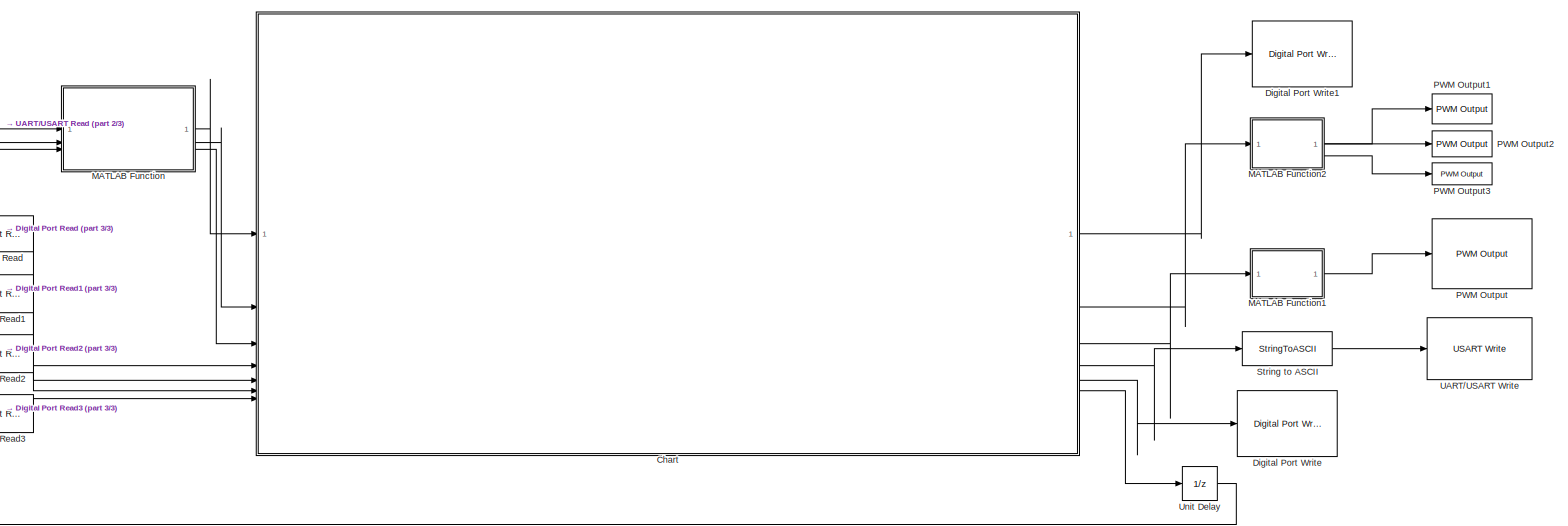
[diagram: root canvas - part 1/3, most of the canvas]
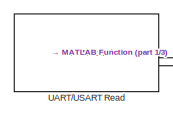
[diagram: root canvas - part 2/3, top left region]
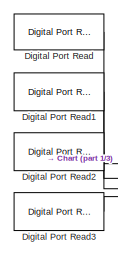
[diagram: root canvas - part 3/3, middle left region]
MODEL slx_bc72fd0477a3
KIND model
CONFIG AbsTol = auto
CONFIG EnableMultiTasking = on
CONFIG FixedStep = auto
CONFIG MaxStep = auto
CONFIG MinStep = auto
CONFIG RelTol = 1e-3
CONFIG SampleTimeConstraint = Unconstrained
CONFIG SolverName = FixedStepAuto
CONFIG StartTime = 0.0
CONFIG StopTime = Inf
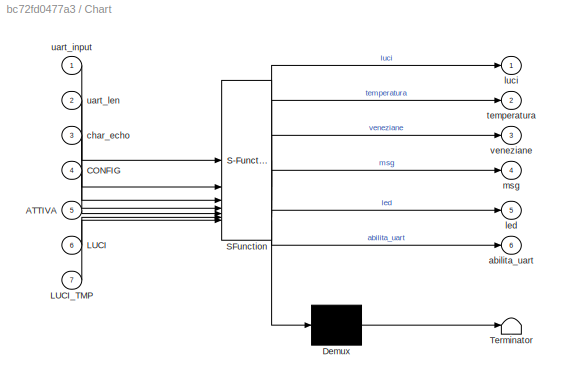
BLOCK [SubSystem] Chart
  ErrorFcn = Stateflow.Translate.translate
  PermitHierarchicalResolution = ExplicitOnly
  SFBlockType = Chart
  TreatAsAtomicUnit = on
BLOCK [Demux] Chart/ Demux 
  Outputs = 1
BLOCK [S-Function] Chart/ SFunction 
  EnableBusSupport = on
  FunctionName = sf_sfun
  Parameters = 0
  PortCounts = [7 7]
  SFcnIsStateOwnerBlock = off
  SFunctionDeploymentMode = off
  Tag = Stateflow S-Function 3
BLOCK [Terminator] Chart/ Terminator 
BLOCK [Inport] Chart/ATTIVA
  Port = 5
BLOCK [Inport] Chart/CONFIG
  Port = 4
BLOCK [Inport] Chart/LUCI
  Port = 6
BLOCK [Inport] Chart/LUCI_TMP
  Port = 7
BLOCK [Outport] Chart/abilita_uart
  Port = 6
BLOCK [Inport] Chart/char_echo
  Port = 3
BLOCK [Outport] Chart/led
  Port = 5
BLOCK [Outport] Chart/luci
BLOCK [Outport] Chart/msg
  Port = 4
BLOCK [Outport] Chart/temperatura
  Port = 2
BLOCK [Inport] Chart/uart_input
BLOCK [Inport] Chart/uart_len
  Port = 2
BLOCK [Outport] Chart/veneziane
  Port = 3
BLOCK [Reference] Digital Port Read  REF=stm32f4xxblockslib/Digital Port Read
  SourceBlock = stm32f4xxblockslib/Digital Port Read
  SourceType = stm32cube.blocks.DigitalPortRead
BLOCK [Reference] Digital Port Read1  REF=stm32f4xxblockslib/Digital Port Read
  SourceBlock = stm32f4xxblockslib/Digital Port Read
  SourceType = stm32cube.blocks.DigitalPortRead
BLOCK [Reference] Digital Port Read2  REF=stm32f4xxblockslib/Digital Port Read
  SourceBlock = stm32f4xxblockslib/Digital Port Read
  SourceType = stm32cube.blocks.DigitalPortRead
BLOCK [Reference] Digital Port Read3  REF=stm32f4xxblockslib/Digital Port Read
  SourceBlock = stm32f4xxblockslib/Digital Port Read
  SourceType = stm32cube.blocks.DigitalPortRead
BLOCK [Reference] Digital Port Write  REF=stm32f4xxblockslib/Digital Port Write
  SourceBlock = stm32f4xxblockslib/Digital Port Write
  SourceType = stm32cube.blocks.DigitalPortWrite
BLOCK [Reference] Digital Port Write1  REF=stm32f4xxblockslib/Digital Port Write
  SourceBlock = stm32f4xxblockslib/Digital Port Write
  SourceType = stm32cube.blocks.DigitalPortWrite
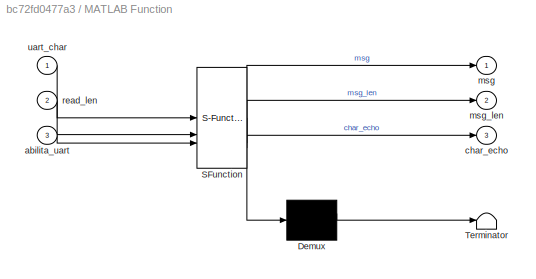
BLOCK [SubSystem] MATLAB Function
  ErrorFcn = Stateflow.Translate.translate
  PermitHierarchicalResolution = ExplicitOnly
  SFBlockType = MATLAB Function
  TreatAsAtomicUnit = on
BLOCK [Demux] MATLAB Function/ Demux 
  Outputs = 1
BLOCK [S-Function] MATLAB Function/ SFunction 
  EnableBusSupport = on
  FunctionName = sf_sfun
  PortCounts = [3 4]
  SFcnIsStateOwnerBlock = off
  SFunctionDeploymentMode = off
  Tag = Stateflow S-Function 2
BLOCK [Terminator] MATLAB Function/ Terminator 
BLOCK [Inport] MATLAB Function/abilita_uart
  Port = 3
BLOCK [Outport] MATLAB Function/char_echo
  Port = 3
BLOCK [Outport] MATLAB Function/msg
BLOCK [Outport] MATLAB Function/msg_len
  Port = 2
BLOCK [Inport] MATLAB Function/read_len
  Port = 2
BLOCK [Inport] MATLAB Function/uart_char
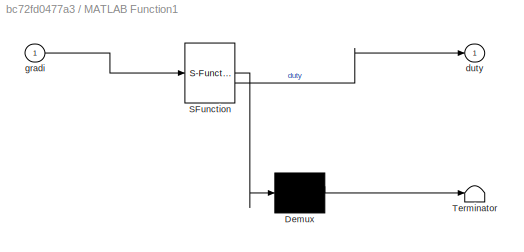
BLOCK [SubSystem] MATLAB Function1
  ErrorFcn = Stateflow.Translate.translate
  PermitHierarchicalResolution = ExplicitOnly
  SFBlockType = MATLAB Function
  TreatAsAtomicUnit = on
BLOCK [Demux] MATLAB Function1/ Demux 
  Outputs = 1
BLOCK [S-Function] MATLAB Function1/ SFunction 
  EnableBusSupport = on
  FunctionName = sf_sfun
  PortCounts = [1 2]
  SFcnIsStateOwnerBlock = off
  SFunctionDeploymentMode = off
  Tag = Stateflow S-Function 1
BLOCK [Terminator] MATLAB Function1/ Terminator 
BLOCK [Outport] MATLAB Function1/duty
BLOCK [Inport] MATLAB Function1/gradi
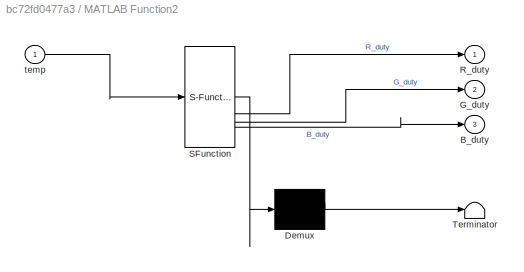
BLOCK [SubSystem] MATLAB Function2
  ErrorFcn = Stateflow.Translate.translate
  PermitHierarchicalResolution = ExplicitOnly
  SFBlockType = MATLAB Function
  TreatAsAtomicUnit = on
BLOCK [Demux] MATLAB Function2/ Demux 
  Outputs = 1
BLOCK [S-Function] MATLAB Function2/ SFunction 
  EnableBusSupport = on
  FunctionName = sf_sfun
  PortCounts = [1 4]
  SFcnIsStateOwnerBlock = off
  SFunctionDeploymentMode = off
  Tag = Stateflow S-Function 4
BLOCK [Terminator] MATLAB Function2/ Terminator 
BLOCK [Outport] MATLAB Function2/B_duty
  Port = 3
BLOCK [Outport] MATLAB Function2/G_duty
  Port = 2
BLOCK [Outport] MATLAB Function2/R_duty
BLOCK [Inport] MATLAB Function2/temp
BLOCK [Reference] PWM Output  REF=stm32f4xxblockslib/PWM Output
  SourceBlock = stm32f4xxblockslib/PWM Output
  SourceType = stm32cube.blocks.PWMOutput
BLOCK [Reference] PWM Output1  REF=stm32f4xxblockslib/PWM Output
  SourceBlock = stm32f4xxblockslib/PWM Output
  SourceType = stm32cube.blocks.PWMOutput
BLOCK [Reference] PWM Output2  REF=stm32f4xxblockslib/PWM Output
  SourceBlock = stm32f4xxblockslib/PWM Output
  SourceType = stm32cube.blocks.PWMOutput
BLOCK [Reference] PWM Output3  REF=stm32f4xxblockslib/PWM Output
  SourceBlock = stm32f4xxblockslib/PWM Output
  SourceType = stm32cube.blocks.PWMOutput
BLOCK [StringToASCII] String to ASCII
  OutputVectorSize = 130
BLOCK [Reference] UART//USART Read  REF=stm32blockslib/UART//USART Read
  LibrarySourceBlock = stm32g4xxblockslib/UART//USART Read
  SourceBlock = stm32blockslib/UART//USART Read
  SourceType = stm32cube.blocks.UARTRead
BLOCK [Reference] UART//USART Write  REF=stm32blockslib/UART//USART Write
  LibrarySourceBlock = stm32g4xxblockslib/UART//USART Write
  SourceBlock = stm32blockslib/UART//USART Write
  SourceType = stm32cube.blocks.UARTWrite
BLOCK [UnitDelay] Unit Delay
  HasFrameUpgradeWarning = on
  SampleTime = -1
LINE Chart:1 -> Digital Port Write1:1
LINE Chart:2 -> MATLAB Function2:1
LINE Chart:3 -> MATLAB Function1:1
LINE Chart:4 -> String to ASCII:1
LINE Chart:5 -> Digital Port Write:1
LINE Chart:6 -> Unit Delay:1
LINE Digital Port Read1:1 -> Chart:5
LINE Digital Port Read2:1 -> Chart:6
LINE Digital Port Read3:1 -> Chart:7
LINE Digital Port Read:1 -> Chart:4
LINE MATLAB Function1:1 -> PWM Output:1
LINE MATLAB Function2:1 -> PWM Output1:1
LINE MATLAB Function2:2 -> PWM Output2:1
LINE MATLAB Function2:3 -> PWM Output3:1
LINE MATLAB Function:1 -> Chart:1
LINE MATLAB Function:2 -> Chart:2
LINE MATLAB Function:3 -> Chart:3
LINE String to ASCII:1 -> UART//USART Write:1
LINE UART//USART Read:1 -> MATLAB Function:1
LINE UART//USART Read:2 -> MATLAB Function:2
LINE Unit Delay:1 -> MATLAB Function:3
CHART MATLAB Function1 states=1 transitions=1
  STATE_LABEL 'eML_blk_kernel()'
  STATE_LABEL 'SCRIPT:\nfunction duty = gradiToDuty(gradi)\n%#codegen\n\n% Mappa i gradi [0:20:180] in duty [%] da 12.5 a 2.5 (servo inverso)\nswitch gradi\n    case 0\n        duty = 2.50;\n    case 20\n        duty = 3.62;\n    case 40\n        duty = 4.73;\n    case 60\n        duty = 5.84;\n    case 80\n        duty = 6.95;\n    case 100\n        duty = 8.06;\n    case 120\n        duty = 9.17;\n    case 140\n        duty = 10.2...<+142ch>'
CHART MATLAB Function states=1 transitions=1
  STATE_LABEL 'eML_blk_kernel()'
  STATE_LABEL "SCRIPT:\nfunction [msg, msg_len, char_echo] = CharBuffer(uart_char, read_len, abilita_uart)\n%#codegen\n\n% persistent per mantenere buffer e indice precedenti ad ogni nuovo\n% carattere inserito\npersistent buffer idx\n\n% inizializzo il buffer con dimensione 50 byte solo al primo avvio.\nif isempty(buffer)\n    buffer = zeros(1, 50, 'uint8');  % massimo 50 caratteri\n    idx = 1; %indici partono da 1\nend\n\n...<+1750ch>"
CHART Chart states=25 transitions=43
  STATE_LABEL 'STATO_ATTIVO\nen:\nif stato==1\n    luci = oldLuci;\n    veneziane = oldVeneziane;\n    temperatura = oldTemperatura;\n    temporizzazione = oldTemporizzazione;\nend\n'
  STATE_LABEL 'SISTEMA'
  STATE_LABEL 'isValid = VenezianeIsValid(uart_input)'
  STATE_LABEL "SCRIPT:\nfunction isValid = VenezianeIsValid(uart_input)\n% Restituisce true se l'input È valido\n\n    valid_values = {'0', '20', '40', '60', '80', ...\n                    '100', '120', '140', '160', '180'};\n    isValid = any(strcmp(uart_input, valid_values));\nend\n"
  STATE_LABEL 'isValid = TemporizzazioneIsValid(uart_input)'
  STATE_LABEL "SCRIPT:\nfunction isValid = TemporizzazioneIsValid(uart_input)\n% Restituisce true se l'input è valido per la temporizzazione\n% Valori validi: '0' oppure da '5' a '30'\n\n    valid_values = {'0', '5', '6', '7', '8', '9', ...\n                    '10', '11', '12', '13', '14', '15', '16', '17', '18', '19', ...\n                    '20', '21', '22', '23', '24', '25', '26', '27', '28', '29', '30'};\n        ...<+66ch>"
  STATE_LABEL 'isValid = TemperaturaIsValid(uart_input)'
  STATE_LABEL "SCRIPT:\nfunction isValid = TemperaturaIsValid(uart_input)\n% Restituisce true se l'input è valido per la temperatura\n% Valori validi: da '16' a '30'\n\n    valid_values = {'16', '17', '18', '19', ...\n                    '20', '21', '22', '23', '24', '25', ...\n                    '26', '27', '28', '29', '30'};\n                \n    isValid = any(strcmp(uart_input, valid_values));\nend\n"
  STATE_LABEL 'CONFIGURAZIONE\nen:\nabilita_uart=1;\n'
  STATE_LABEL 'ERROR\nen: msg = string(char(eol)) + ...\n     "Input non valido! Riprova." + string(char(eol));\nex: msg = "";\n'
  STATE_LABEL 'SELEZIONE_MOD\nen: msg = string(char(eol)) + ...\n     "Digita cosa vuoi configurare. Inserisci luci, temperatura, veneziane oppure conferma." + ...\n     string(char(eol));\ndu: msg = "";\n if uart_len == 0 && strlength(char_echo) > 0\n     msg = char_echo;\n end'
  STATE_LABEL 'CONFERMA\nen:\nif oldLuci == 255 || oldTemporizzazione == 255 || oldTemperatura == 255 || oldVeneziane == 255\n    msg = string(char(eol)) + ...\n        "Occorre inserire una configurazione valida per ogni funzione." + string(char(eol));\n    stato = 0;\nelse\n    msg = string(char(eol)) + "Configurazione salvata." + string(char(eol));\n    stato = 1;\nend\nex:\n   msg = "";\n'
  STATE_LABEL 'SET_TEMPERATURA\nen:\n      msg=string(char(eol)) + ...\n          "Inserisci configurazione per la temperatura. Digita un valore intero tra 16 e 30" + string(char(eol));\ndu:\n      msg = "";\n      if uart_len == 0 && strlength(char_echo) > 0\n          msg = char_echo;\n      end\n      if TemperaturaIsValid(uart_input)\n          temp = sscanf(char(uart_input), \'%d\');\n          converted_input = uint8(t...<+63ch>'
  STATE_LABEL 'SET_VENEZIANE\nen: msg= string(char(eol)) + ...\n     "Inserisci configurazione per le veneziane. Digita un valore tra i seguenti: 0, 20, 40, 60, 80, 100, 120, 140, 160, 180." + ...\n     string(char(eol));\ndu: msg= "";\n if uart_len == 0 && strlength(char_echo) > 0\n     msg = char_echo;\n end\n if VenezianeIsValid(uart_input)\n     temp = sscanf(char(uart_input), \'%d\');\n     converted_input = uint8(temp...<+48ch>'
  STATE_LABEL 'SET_LUCE\nen:\n      msg = string(char(eol)) + ...\n          "Inserisci configurazione per le luci. Digita ON oppure OFF" + ...\n          string(char(eol));\ndu:\n      msg = "";\n      if uart_len == 0 && strlength(char_echo) > 0\n          msg = char_echo;\n      end\n      if strcmp(uart_input,"ON")\n          oldLuci = ON;\n      end\n      if strcmp(uart_input,"OFF")\n          oldLuci = OFF;\n      end\n'
  STATE_LABEL 'SET_TEMP\nen:\n      msg = string(char(eol)) + ...\n          "Inserisci 0 per disattivare la temporizzazione oppure un valore tra 5 e 30" + ...\n          string(char(eol));\ndu:\n      msg = "";\n      if uart_len == 0 && strlength(char_echo) > 0\n          msg = char_echo;\n      end\n      if TemporizzazioneIsValid(uart_input)\n          temp = sscanf(char(uart_input), \'%d\');\n          converted_input = ...<+73ch>'
  STATE_LABEL '[error == "menu"]'
  STATE_LABEL '[uart_len > 0]{error = "menu"}'
  STATE_LABEL '[error == "tempo"]'
  STATE_LABEL '[uart_len > 0 && ~strcmp(uart_input, "exit") && ~TemporizzazioneIsValid(uart_input)]{error="tempo"}'
  STATE_LABEL '[uart_len > 0 && ~strcmp(uart_input, "exit") && ~strcmp(uart_input, "ON") && ~strcmp(uart_input, "OFF")]{error = "luci"}'
  STATE_LABEL '[error == "luci"]'
  STATE_LABEL '[uart_len > 0 && ~strcmp(uart_input, "exit") && ~TemperaturaIsValid(uart_input)]{error="temperatura"}'
  STATE_LABEL '[error == "temperatura"]'
  STATE_LABEL '[error == "veneziane"]'
  STATE_LABEL '[uart_len > 0 && ~strcmp(uart_input, "exit") && ~VenezianeIsValid(uart_input)]{error = "veneziane"}'
  STATE_LABEL '[change(oldTemporizzazione) || (uart_len > 0 && strcmp(uart_input, "exit"))]'
  STATE_LABEL '[uart_len > 0 && strcmp(uart_input, "exit")]'
  STATE_LABEL '[uart_len > 0 && strcmp(uart_input, "luci")]'
  STATE_LABEL '[change(oldVeneziane) || (uart_len > 0 && strcmp(uart_input, "exit"))]'
  STATE_LABEL '[uart_len > 0 && strcmp(uart_input, "veneziane")]'
  STATE_LABEL '[uart_len > 0 && strcmp(uart_input, "temperatura")]'
  STATE_LABEL '[change(oldTemperatura) || (uart_len > 0 && strcmp(uart_input, "exit"))]'
  STATE_LABEL '[stato == 0]'
  STATE_LABEL '[uart_len > 0 && strcmp(uart_input,"conferma")]'
  STATE_LABEL '[change(oldLuci)]'
  STATE_LABEL 'OPERATIVO\nen:\nabilita_uart=0;\n'
  STATE_LABEL 'LUCI\n\n'
  STATE_LABEL 'ON\nen: luci = ON;'
  STATE_LABEL 'OFF\nen: luci = OFF\n'
CHART MATLAB Function2 states=1 transitions=1
  STATE_LABEL 'eML_blk_kernel()'
  STATE_LABEL 'SCRIPT:\nfunction [R_duty, G_duty, B_duty] = mapColor(temp)\n    % Mappa temperatura a valori RGB (0–1)\n\n    if temp >= 16 && temp <= 18\n        R = 0; G = 0; B = 1;        % Blu\n    elseif temp >= 19 && temp <= 21\n        R = 0.5; G = 0; B = 0.5;    % Viola\n    elseif temp >= 22 && temp <= 24\n        R = 1; G = 0.5; B = 0;        % Giallo\n    elseif temp >= 25 && temp <= 27\n        R = 1; G = 0.2; ...<+217ch>'
CHART  states=0 transitions=0
CHART  states=0 transitions=0
CHART  states=0 transitions=0
CHART  states=0 transitions=0
